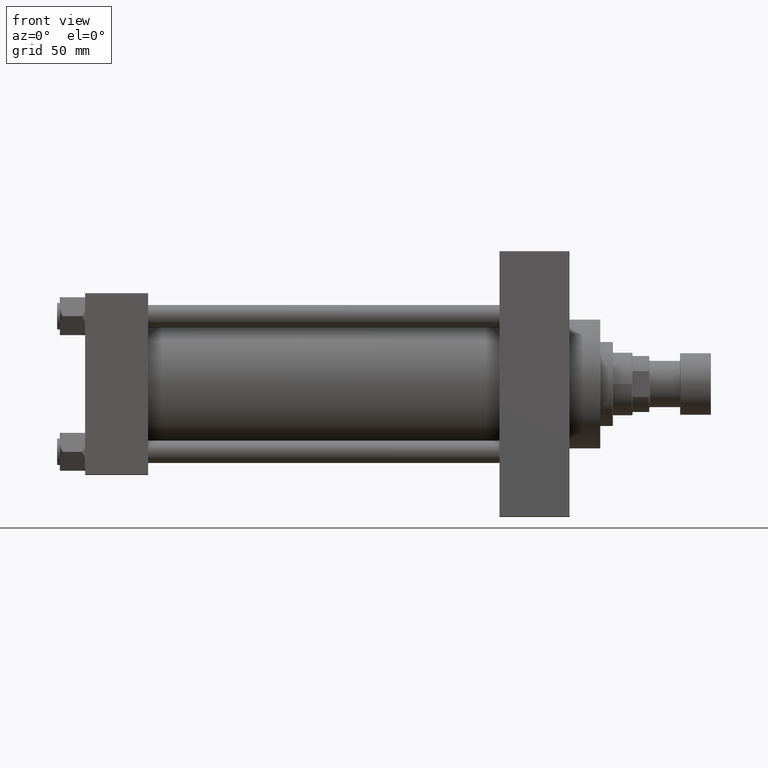
[diagram: clean part render]
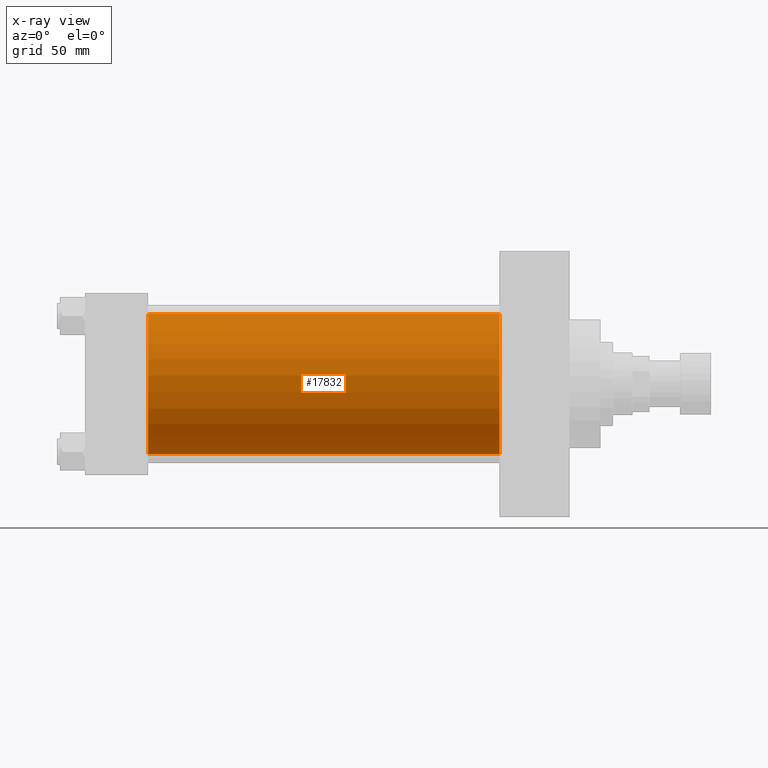
[diagram: x-ray — body ghosted, one internal face saturated and labeled with its STEP entity id]
A machine part, front view, then the same camera in x-ray: the body is ghosted and one INTERNAL B-rep face — a face not visible from any outside direction — is saturated and labeled: STEP entity #17832.
In plain terms, the highlighted cylindrical surface (partial cylindrical patch) has radius 50 mm, axis along (-1, -0, -0).
Its self-contained STEP definition (entity closure, byte-faithful):
#248 = ORIENTED_EDGE ( 'NONE', *, *, #27287, .F. ) ;
#3623 = VECTOR ( 'NONE', #32134, 1000.000000000000000 ) ;
#4083 = ORIENTED_EDGE ( 'NONE', *, *, #49252, .T. ) ;
#5013 = CARTESIAN_POINT ( 'NONE',  ( 45.00000000000000000, -2.602085213965210642E-15, 50.00000000000000000 ) ) ;
#5182 = CARTESIAN_POINT ( 'NONE',  ( 296.0000000000000000, 3.521148781771555838E-15, -50.00000000000000000 ) ) ;
#6958 = CYLINDRICAL_SURFACE ( 'NONE', #25525, 50.00000000000000000 ) ;
#8755 = CARTESIAN_POINT ( 'NONE',  ( 296.0000000000000000, 3.521148781771555838E-15, -50.00000000000000000 ) ) ;
#9967 = CARTESIAN_POINT ( 'NONE',  ( 296.0000000000000000, -2.602085213965210642E-15, 50.00000000000000000 ) ) ;
#11134 = CARTESIAN_POINT ( 'NONE',  ( 45.00000000000000000, -2.602085213965210642E-15, 0.000000000000000000 ) ) ;
#11926 = CIRCLE ( 'NONE', #35490, 50.00000000000000000 ) ;
#11968 = EDGE_CURVE ( 'NONE', #47290, #19316, #42916, .T. ) ;
#12614 = CARTESIAN_POINT ( 'NONE',  ( 296.0000000000000000, -2.602085213965210642E-15, 50.00000000000000000 ) ) ;
#15979 = VERTEX_POINT ( 'NONE', #8755 ) ;
#17832 = ADVANCED_FACE ( 'NONE', ( #26527 ), #6958, .F. ) ;
#18363 = CARTESIAN_POINT ( 'NONE',  ( 296.0000000000000000, -2.602085213965210642E-15, 0.000000000000000000 ) ) ;
#18647 = CARTESIAN_POINT ( 'NONE',  ( 296.0000000000000000, -2.602085213965210642E-15, 0.000000000000000000 ) ) ;
#19033 = DIRECTION ( 'NONE',  ( 1.000000000000000000, 0.000000000000000000, 0.000000000000000000 ) ) ;
#19316 = VERTEX_POINT ( 'NONE', #5013 ) ;
#21119 = ORIENTED_EDGE ( 'NONE', *, *, #11968, .F. ) ;
#21302 = ORIENTED_EDGE ( 'NONE', *, *, #39371, .T. ) ;
#21320 = VECTOR ( 'NONE', #28378, 1000.000000000000000 ) ;
#21823 = CARTESIAN_POINT ( 'NONE',  ( 45.00000000000000000, 3.521148781771555838E-15, -50.00000000000000000 ) ) ;
#22462 = DIRECTION ( 'NONE',  ( 0.000000000000000000, 0.000000000000000000, 1.000000000000000000 ) ) ;
#25232 = DIRECTION ( 'NONE',  ( 1.000000000000000000, 0.000000000000000000, 0.000000000000000000 ) ) ;
#25525 = AXIS2_PLACEMENT_3D ( 'NONE', #18647, #38728, #22462 ) ;
#26527 = FACE_OUTER_BOUND ( 'NONE', #45601, .T. ) ;
#26654 = DIRECTION ( 'NONE',  ( 0.000000000000000000, 0.000000000000000000, -1.000000000000000000 ) ) ;
#27287 = EDGE_CURVE ( 'NONE', #19316, #34567, #11926, .T. ) ;
#28378 = DIRECTION ( 'NONE',  ( -1.000000000000000000, -0.000000000000000000, -0.000000000000000000 ) ) ;
#29294 = DIRECTION ( 'NONE',  ( 0.000000000000000000, 0.000000000000000000, -1.000000000000000000 ) ) ;
#32134 = DIRECTION ( 'NONE',  ( -1.000000000000000000, -0.000000000000000000, -0.000000000000000000 ) ) ;
#34567 = VERTEX_POINT ( 'NONE', #21823 ) ;
#35490 = AXIS2_PLACEMENT_3D ( 'NONE', #11134, #19033, #26654 ) ;
#36678 = CIRCLE ( 'NONE', #43984, 50.00000000000000000 ) ;
#38728 = DIRECTION ( 'NONE',  ( -1.000000000000000000, -0.000000000000000000, -0.000000000000000000 ) ) ;
#39371 = EDGE_CURVE ( 'NONE', #47290, #15979, #36678, .T. ) ;
#40028 = LINE ( 'NONE', #5182, #3623 ) ;
#42916 = LINE ( 'NONE', #12614, #21320 ) ;
#43984 = AXIS2_PLACEMENT_3D ( 'NONE', #18363, #25232, #29294 ) ;
#45601 = EDGE_LOOP ( 'NONE', ( #21302, #4083, #248, #21119 ) ) ;
#47290 = VERTEX_POINT ( 'NONE', #9967 ) ;
#49252 = EDGE_CURVE ( 'NONE', #15979, #34567, #40028, .T. ) ;